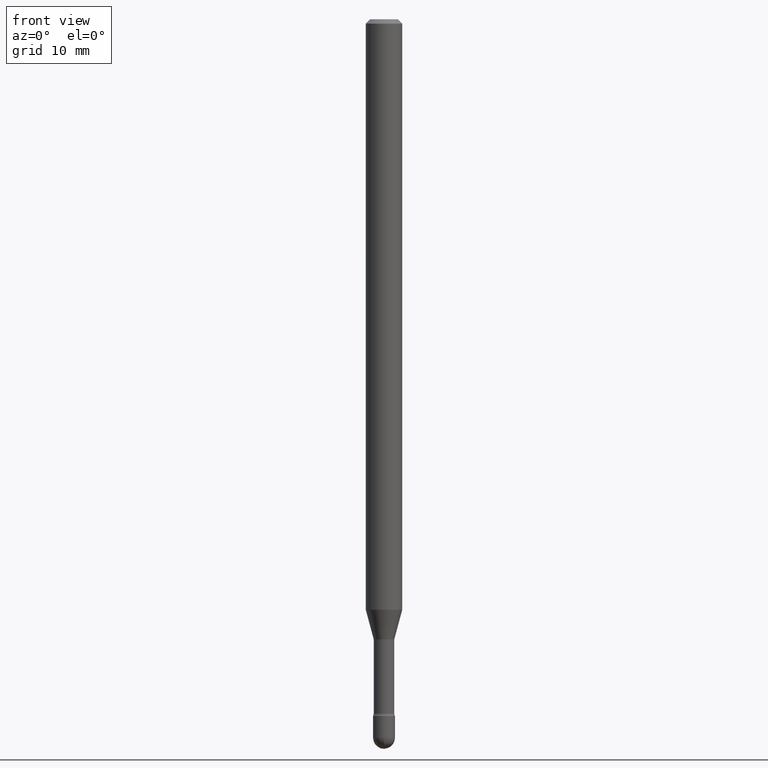
[diagram: clean part render]
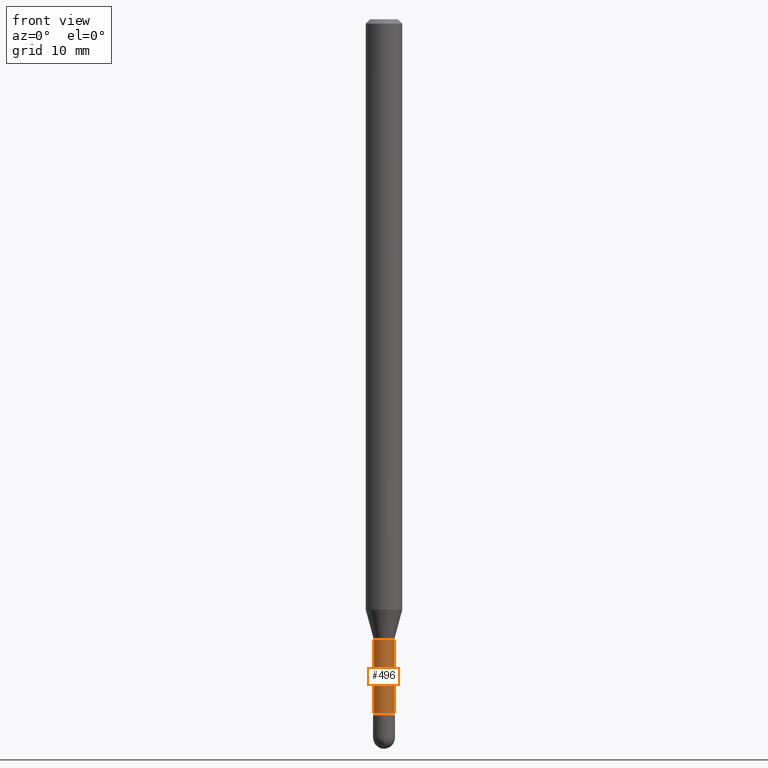
[diagram: same view with one face highlighted and labeled with its STEP entity id]
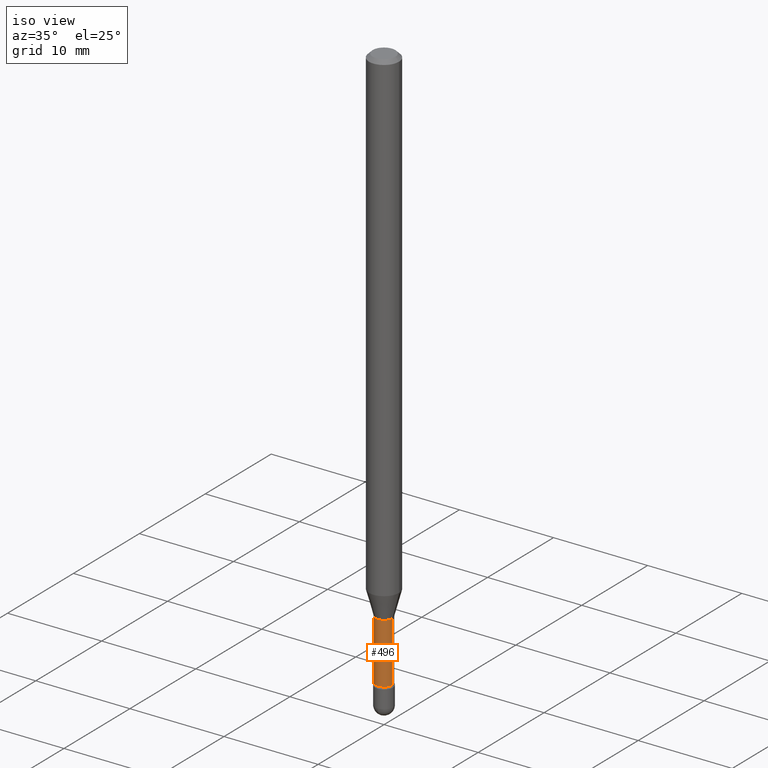
[diagram: same view with one face highlighted and labeled with its STEP entity id]
A machine part, front view. The second image highlights one B-rep face of the part: STEP entity #496.
A second angle (iso view) of the same face is appended — the face is thin or edge-on in the first view.
In plain terms, the highlighted cylindrical surface (edge-blend (fillet) strip) has radius 0.8953 mm, axis along (-0, 0, 1).
Its self-contained STEP definition (entity closure, byte-faithful):
#13 = CARTESIAN_POINT ( 'NONE',  ( 0.03524999999999997580, -8.552726611354078422E-15, -2.379098259685360262 ) ) ;
#18 = CARTESIAN_POINT ( 'NONE',  ( -0.03525000000000000355, -7.615968663437265781E-15, -2.126974787463811190 ) ) ;
#35 = DIRECTION ( 'NONE',  ( 1.000000000000000000, -6.982962677686270655E-15, 0.000000000000000000 ) ) ;
#41 = CYLINDRICAL_SURFACE ( 'NONE', #207, 0.03524999999999998274 ) ;
#54 = VERTEX_POINT ( 'NONE', #432 ) ;
#74 = VECTOR ( 'NONE', #335, 39.37007874015748143 ) ;
#77 = CARTESIAN_POINT ( 'NONE',  ( 5.201450494285011202E-29, -7.426292778619762925E-15, -2.126974787463811190 ) ) ;
#78 = EDGE_LOOP ( 'NONE', ( #310, #268, #445, #536 ) ) ;
#87 = DIRECTION ( 'NONE',  ( -2.445468806185136597E-29, 3.491481338843145583E-15, 1.000000000000000000 ) ) ;
#98 = DIRECTION ( 'NONE',  ( -2.445468806185136597E-29, 3.491481338843145583E-15, 1.000000000000000000 ) ) ;
#113 = VECTOR ( 'NONE', #465, 39.37007874015748143 ) ;
#134 = EDGE_CURVE ( 'NONE', #203, #532, #376, .T. ) ;
#163 = EDGE_CURVE ( 'NONE', #349, #54, #260, .T. ) ;
#167 = CARTESIAN_POINT ( 'NONE',  ( -1.169113584055446105E-44, 1.669184350826100908E-30, 4.780733988912460139E-16 ) ) ;
#203 = VERTEX_POINT ( 'NONE', #507 ) ;
#207 = AXIS2_PLACEMENT_3D ( 'NONE', #167, #87, #256 ) ;
#214 = CARTESIAN_POINT ( 'NONE',  ( 0.03524999999999998274, -2.461494343884391522E-16, 4.780733988912477889E-16 ) ) ;
#238 = EDGE_CURVE ( 'NONE', #532, #54, #259, .T. ) ;
#256 = DIRECTION ( 'NONE',  ( 1.000000000000000000, -6.982962677686268288E-15, 4.818320294217244513E-29 ) ) ;
#259 = CIRCLE ( 'NONE', #356, 0.03524999999999999661 ) ;
#260 = LINE ( 'NONE', #214, #113 ) ;
#268 = ORIENTED_EDGE ( 'NONE', *, *, #548, .T. ) ;
#276 = CARTESIAN_POINT ( 'NONE',  ( 5.818010580909893769E-29, -8.306577176965637742E-15, -2.379098259685360262 ) ) ;
#310 = ORIENTED_EDGE ( 'NONE', *, *, #134, .F. ) ;
#335 = DIRECTION ( 'NONE',  ( -2.445468806185136877E-29, 3.491481338843145188E-15, 1.000000000000000000 ) ) ;
#348 = DIRECTION ( 'NONE',  ( -2.445468806185136597E-29, 3.491481338843145583E-15, 1.000000000000000000 ) ) ;
#349 = VERTEX_POINT ( 'NONE', #13 ) ;
#356 = AXIS2_PLACEMENT_3D ( 'NONE', #77, #348, #35 ) ;
#375 = CIRCLE ( 'NONE', #516, 0.03524999999999997580 ) ;
#376 = LINE ( 'NONE', #549, #74 ) ;
#428 = FACE_OUTER_BOUND ( 'NONE', #78, .T. ) ;
#432 = CARTESIAN_POINT ( 'NONE',  ( 0.03524999999999999661, -7.672442213008203606E-15, -2.126974787463811190 ) ) ;
#445 = ORIENTED_EDGE ( 'NONE', *, *, #163, .T. ) ;
#465 = DIRECTION ( 'NONE',  ( -2.445468806185136877E-29, 3.491481338843145188E-15, 1.000000000000000000 ) ) ;
#496 = ADVANCED_FACE ( 'NONE', ( #428 ), #41, .T. ) ;
#507 = CARTESIAN_POINT ( 'NONE',  ( -0.03524999999999997580, -8.061911646259376779E-15, -2.379098259685360262 ) ) ;
#516 = AXIS2_PLACEMENT_3D ( 'NONE', #276, #98, #533 ) ;
#532 = VERTEX_POINT ( 'NONE', #18 ) ;
#533 = DIRECTION ( 'NONE',  ( 1.000000000000000000, -6.982962677686275388E-15, 0.000000000000000000 ) ) ;
#536 = ORIENTED_EDGE ( 'NONE', *, *, #238, .F. ) ;
#548 = EDGE_CURVE ( 'NONE', #203, #349, #375, .T. ) ;
#549 = CARTESIAN_POINT ( 'NONE',  ( -0.03524999999999998274, 2.504663143554368692E-16, 4.780733988912443376E-16 ) ) ;